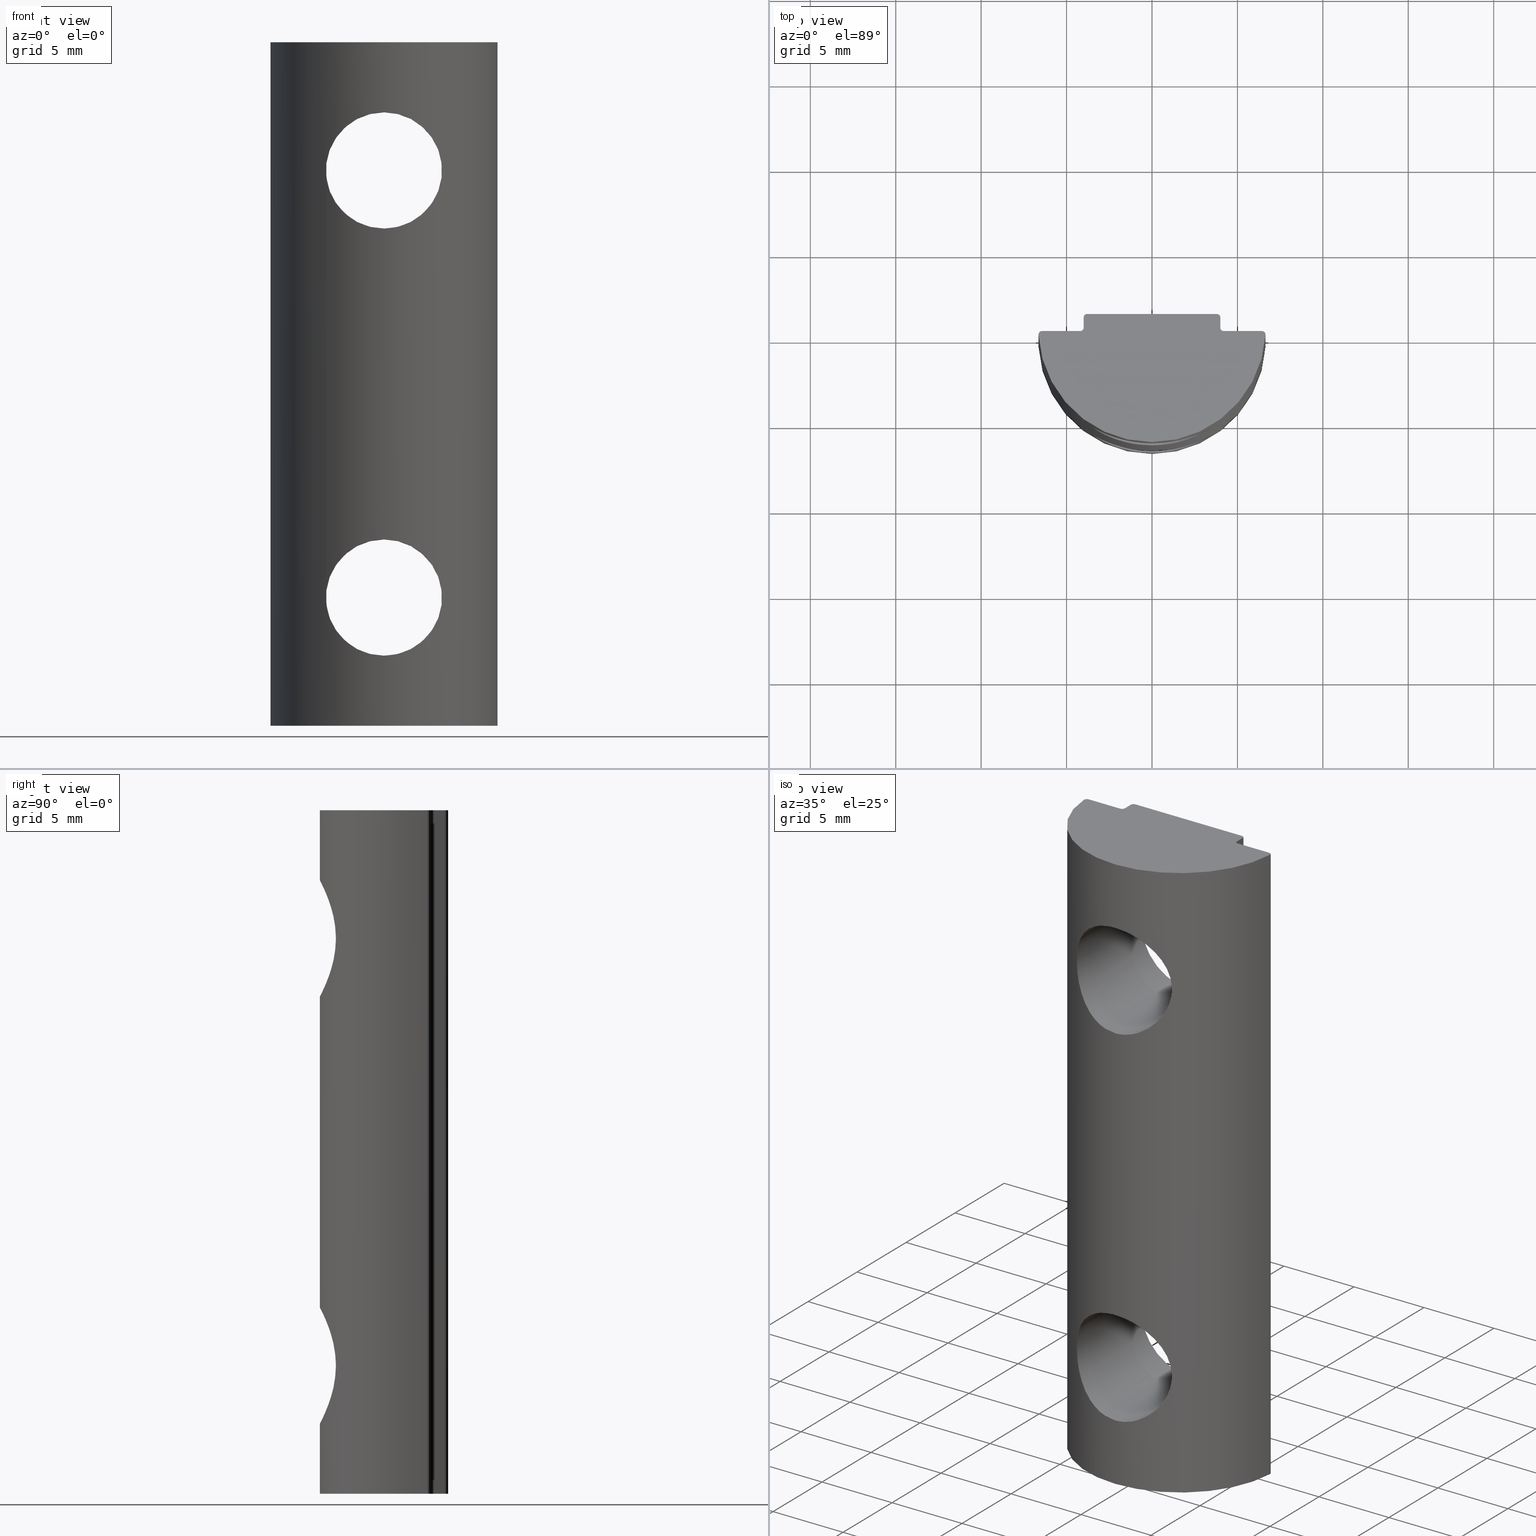
[diagram: canonical four-view strip — front | top / right | iso, engineering-drawing reading convention]
A machine part, canonical four-view strip (front | top / right | iso — engineering-drawing reading convention). The complete STEP part file that produces these views, byte-faithful:
ISO-10303-21;
HEADER;
/* Generated by software containing ST-Developer
 * from STEP Tools, Inc. (www.steptools.com) 
 */

FILE_DESCRIPTION(
/* description */ ('STEP AP203'),
/* implementation_level */ '2;1');

FILE_NAME(
/* name */ 
'Q:\\Catalogo\\2_Accessori Dierre\\Per Download Web e catalogo cartace
o\\CATALOGO ELEMENTI ASSEMBLAGGIO\\PAGINA 23\\CGIPR0000106.stp',
/* time_stamp */ '2018-05-04T11:14:13+02:00',
/* author */ ('fzagni'),
/* organization */ (''),
/* preprocessor_version */ 'ST-DEVELOPER v16.1',
/* originating_system */ 'Autodesk Inventor 2016',
/* authorisation */ '');

FILE_SCHEMA (('AUTOMOTIVE_DESIGN { 1 0 10303 214 3 1 1 }'));
ENDSEC;

DATA;
#10=MECHANICAL_DESIGN_GEOMETRIC_PRESENTATION_REPRESENTATION('',(#16),#580);
#11=DIMENSIONAL_EXPONENTS(0.,0.,0.,0.,0.,0.,0.);
#12=(
CONVERSION_BASED_UNIT('degree',#13)
NAMED_UNIT(#11)
PLANE_ANGLE_UNIT()
);
#13=PLANE_ANGLE_MEASURE_WITH_UNIT(PLANE_ANGLE_MEASURE(0.01745329252),#583);
#14=SHAPE_REPRESENTATION_RELATIONSHIP('SRR','None',#586,#15);
#15=ADVANCED_BREP_SHAPE_REPRESENTATION('',(#17),#579);
#16=STYLED_ITEM('',(#595),#17);
#17=MANIFOLD_SOLID_BREP('Solido1',#304);
#18=PLANE('',#316);
#19=PLANE('',#317);
#20=PLANE('',#318);
#21=PLANE('',#319);
#22=PLANE('',#320);
#23=PLANE('',#321);
#24=PLANE('',#327);
#25=LINE('',#508,#47);
#26=LINE('',#511,#48);
#27=LINE('',#517,#49);
#28=LINE('',#521,#50);
#29=LINE('',#523,#51);
#30=LINE('',#525,#52);
#31=LINE('',#526,#53);
#32=LINE('',#530,#54);
#33=LINE('',#532,#55);
#34=LINE('',#534,#56);
#35=LINE('',#535,#57);
#36=LINE('',#539,#58);
#37=LINE('',#541,#59);
#38=LINE('',#543,#60);
#39=LINE('',#544,#61);
#40=LINE('',#548,#62);
#41=LINE('',#550,#63);
#42=LINE('',#552,#64);
#43=LINE('',#553,#65);
#44=LINE('',#556,#66);
#45=LINE('',#558,#67);
#46=LINE('',#559,#68);
#47=VECTOR('',#352,40.);
#48=VECTOR('',#355,40.);
#49=VECTOR('',#362,40.);
#50=VECTOR('',#365,2.24213593341645);
#51=VECTOR('',#366,40.);
#52=VECTOR('',#367,2.24213593341645);
#53=VECTOR('',#368,40.);
#54=VECTOR('',#371,0.6);
#55=VECTOR('',#372,40.);
#56=VECTOR('',#373,0.6);
#57=VECTOR('',#374,40.);
#58=VECTOR('',#377,7.6);
#59=VECTOR('',#378,40.);
#60=VECTOR('',#379,7.6);
#61=VECTOR('',#380,40.);
#62=VECTOR('',#383,0.6);
#63=VECTOR('',#384,40.);
#64=VECTOR('',#385,0.6);
#65=VECTOR('',#386,40.);
#66=VECTOR('',#389,2.24213593341645);
#67=VECTOR('',#390,40.);
#68=VECTOR('',#391,2.24213593341645);
#69=FACE_BOUND('',#108,.T.);
#70=FACE_BOUND('',#110,.T.);
#71=FACE_BOUND('',#113,.T.);
#72=FACE_BOUND('',#114,.T.);
#73=FACE_BOUND('',#118,.T.);
#74=FACE_BOUND('',#119,.T.);
#75=CIRCLE('',#307,3.4);
#76=CIRCLE('',#309,3.4);
#77=CIRCLE('',#311,0.2);
#78=CIRCLE('',#312,0.2);
#79=CIRCLE('',#314,6.65173076923077);
#80=CIRCLE('',#315,6.65173076923077);
#81=CIRCLE('',#322,0.2);
#82=CIRCLE('',#323,0.2);
#83=CIRCLE('',#324,0.2);
#84=CIRCLE('',#325,0.2);
#85=CIRCLE('',#326,0.2);
#86=CIRCLE('',#328,0.2);
#87=CIRCLE('',#329,0.2);
#88=CIRCLE('',#330,0.2);
#89=CIRCLE('',#331,0.2);
#90=CIRCLE('',#332,0.2);
#91=FACE_OUTER_BOUND('',#107,.T.);
#92=FACE_OUTER_BOUND('',#109,.T.);
#93=FACE_OUTER_BOUND('',#111,.T.);
#94=FACE_OUTER_BOUND('',#112,.T.);
#95=FACE_OUTER_BOUND('',#115,.T.);
#96=FACE_OUTER_BOUND('',#116,.T.);
#97=FACE_OUTER_BOUND('',#117,.T.);
#98=FACE_OUTER_BOUND('',#120,.T.);
#99=FACE_OUTER_BOUND('',#121,.T.);
#100=FACE_OUTER_BOUND('',#122,.T.);
#101=FACE_OUTER_BOUND('',#123,.T.);
#102=FACE_OUTER_BOUND('',#124,.T.);
#103=FACE_OUTER_BOUND('',#125,.T.);
#104=FACE_OUTER_BOUND('',#126,.T.);
#105=FACE_OUTER_BOUND('',#127,.T.);
#106=FACE_OUTER_BOUND('',#128,.T.);
#107=EDGE_LOOP('',(#199));
#108=EDGE_LOOP('',(#200));
#109=EDGE_LOOP('',(#201));
#110=EDGE_LOOP('',(#202));
#111=EDGE_LOOP('',(#203,#204,#205,#206));
#112=EDGE_LOOP('',(#207,#208,#209,#210));
#113=EDGE_LOOP('',(#211));
#114=EDGE_LOOP('',(#212));
#115=EDGE_LOOP('',(#213,#214,#215,#216));
#116=EDGE_LOOP('',(#217,#218,#219,#220));
#117=EDGE_LOOP('',(#221,#222,#223,#224));
#118=EDGE_LOOP('',(#225));
#119=EDGE_LOOP('',(#226));
#120=EDGE_LOOP('',(#227,#228,#229,#230));
#121=EDGE_LOOP('',(#231,#232,#233,#234));
#122=EDGE_LOOP('',(#235,#236,#237,#238,#239,#240,#241,#242,#243,#244,#245,
#246));
#123=EDGE_LOOP('',(#247,#248,#249,#250,#251,#252,#253,#254,#255,#256,#257,
#258));
#124=EDGE_LOOP('',(#259,#260,#261,#262));
#125=EDGE_LOOP('',(#263,#264,#265,#266));
#126=EDGE_LOOP('',(#267,#268,#269,#270));
#127=EDGE_LOOP('',(#271,#272,#273,#274));
#128=EDGE_LOOP('',(#275,#276,#277,#278));
#129=B_SPLINE_CURVE_WITH_KNOTS('',3,(#429,#430,#431,#432,#433,#434,#435,
#436,#437,#438,#439,#440,#441,#442,#443,#444,#445,#446,#447,#448,#449,#450,
#451,#452,#453,#454,#455,#456,#457,#458,#459,#460,#461,#462),
 .UNSPECIFIED.,.T.,.F.,(4,2,2,2,2,2,2,2,2,2,2,2,2,2,2,2,4),(0.,0.131027554840982,
0.262055109681964,0.392687474751269,0.523319839820575,0.65395220488988,
0.784584569959185,0.915612124800167,1.04663967964115,1.17766723448213,1.30869478932311,
1.43932715439242,1.56995951946172,1.70059188453103,1.83122424960033,1.96225180444132,
2.0932793592823),.UNSPECIFIED.);
#130=B_SPLINE_CURVE_WITH_KNOTS('',3,(#467,#468,#469,#470,#471,#472,#473,
#474,#475,#476,#477,#478,#479,#480,#481,#482,#483,#484,#485,#486,#487,#488,
#489,#490,#491,#492,#493,#494,#495,#496,#497,#498,#499,#500),
 .UNSPECIFIED.,.T.,.F.,(4,2,2,2,2,2,2,2,2,2,2,2,2,2,2,2,4),(0.,0.131027554840982,
0.262055109681963,0.392687474751269,0.523319839820574,0.653952204889879,
0.784584569959185,0.915612124800167,1.04663967964115,1.17766723448213,1.30869478932311,
1.43932715439242,1.56995951946172,1.70059188453103,1.83122424960033,1.96225180444131,
2.0932793592823),.UNSPECIFIED.);
#131=VERTEX_POINT('',#428);
#132=VERTEX_POINT('',#463);
#133=VERTEX_POINT('',#466);
#134=VERTEX_POINT('',#501);
#135=VERTEX_POINT('',#504);
#136=VERTEX_POINT('',#505);
#137=VERTEX_POINT('',#507);
#138=VERTEX_POINT('',#509);
#139=VERTEX_POINT('',#513);
#140=VERTEX_POINT('',#515);
#141=VERTEX_POINT('',#519);
#142=VERTEX_POINT('',#520);
#143=VERTEX_POINT('',#522);
#144=VERTEX_POINT('',#524);
#145=VERTEX_POINT('',#528);
#146=VERTEX_POINT('',#529);
#147=VERTEX_POINT('',#531);
#148=VERTEX_POINT('',#533);
#149=VERTEX_POINT('',#537);
#150=VERTEX_POINT('',#538);
#151=VERTEX_POINT('',#540);
#152=VERTEX_POINT('',#542);
#153=VERTEX_POINT('',#546);
#154=VERTEX_POINT('',#547);
#155=VERTEX_POINT('',#549);
#156=VERTEX_POINT('',#551);
#157=VERTEX_POINT('',#555);
#158=VERTEX_POINT('',#557);
#159=EDGE_CURVE('',#131,#131,#129,.T.);
#160=EDGE_CURVE('',#132,#132,#75,.T.);
#161=EDGE_CURVE('',#133,#133,#130,.T.);
#162=EDGE_CURVE('',#134,#134,#76,.T.);
#163=EDGE_CURVE('',#135,#136,#77,.T.);
#164=EDGE_CURVE('',#137,#135,#25,.T.);
#165=EDGE_CURVE('',#138,#137,#78,.T.);
#166=EDGE_CURVE('',#136,#138,#26,.T.);
#167=EDGE_CURVE('',#136,#139,#79,.T.);
#168=EDGE_CURVE('',#138,#140,#80,.T.);
#169=EDGE_CURVE('',#140,#139,#27,.T.);
#170=EDGE_CURVE('',#141,#142,#28,.T.);
#171=EDGE_CURVE('',#142,#143,#29,.T.);
#172=EDGE_CURVE('',#144,#143,#30,.T.);
#173=EDGE_CURVE('',#144,#141,#31,.T.);
#174=EDGE_CURVE('',#145,#146,#32,.T.);
#175=EDGE_CURVE('',#146,#147,#33,.T.);
#176=EDGE_CURVE('',#148,#147,#34,.T.);
#177=EDGE_CURVE('',#148,#145,#35,.T.);
#178=EDGE_CURVE('',#149,#150,#36,.T.);
#179=EDGE_CURVE('',#150,#151,#37,.T.);
#180=EDGE_CURVE('',#152,#151,#38,.T.);
#181=EDGE_CURVE('',#152,#149,#39,.T.);
#182=EDGE_CURVE('',#153,#154,#40,.T.);
#183=EDGE_CURVE('',#154,#155,#41,.T.);
#184=EDGE_CURVE('',#156,#155,#42,.T.);
#185=EDGE_CURVE('',#156,#153,#43,.T.);
#186=EDGE_CURVE('',#157,#135,#44,.T.);
#187=EDGE_CURVE('',#157,#158,#45,.T.);
#188=EDGE_CURVE('',#158,#137,#46,.T.);
#189=EDGE_CURVE('',#151,#156,#81,.T.);
#190=EDGE_CURVE('',#155,#157,#82,.T.);
#191=EDGE_CURVE('',#139,#144,#83,.T.);
#192=EDGE_CURVE('',#143,#148,#84,.T.);
#193=EDGE_CURVE('',#147,#152,#85,.T.);
#194=EDGE_CURVE('',#153,#150,#86,.T.);
#195=EDGE_CURVE('',#149,#146,#87,.T.);
#196=EDGE_CURVE('',#145,#142,#88,.T.);
#197=EDGE_CURVE('',#141,#140,#89,.T.);
#198=EDGE_CURVE('',#158,#154,#90,.T.);
#199=ORIENTED_EDGE('',*,*,#159,.F.);
#200=ORIENTED_EDGE('',*,*,#160,.T.);
#201=ORIENTED_EDGE('',*,*,#161,.F.);
#202=ORIENTED_EDGE('',*,*,#162,.T.);
#203=ORIENTED_EDGE('',*,*,#163,.F.);
#204=ORIENTED_EDGE('',*,*,#164,.F.);
#205=ORIENTED_EDGE('',*,*,#165,.F.);
#206=ORIENTED_EDGE('',*,*,#166,.F.);
#207=ORIENTED_EDGE('',*,*,#167,.F.);
#208=ORIENTED_EDGE('',*,*,#166,.T.);
#209=ORIENTED_EDGE('',*,*,#168,.T.);
#210=ORIENTED_EDGE('',*,*,#169,.T.);
#211=ORIENTED_EDGE('',*,*,#159,.T.);
#212=ORIENTED_EDGE('',*,*,#161,.T.);
#213=ORIENTED_EDGE('',*,*,#170,.T.);
#214=ORIENTED_EDGE('',*,*,#171,.T.);
#215=ORIENTED_EDGE('',*,*,#172,.F.);
#216=ORIENTED_EDGE('',*,*,#173,.T.);
#217=ORIENTED_EDGE('',*,*,#174,.T.);
#218=ORIENTED_EDGE('',*,*,#175,.T.);
#219=ORIENTED_EDGE('',*,*,#176,.F.);
#220=ORIENTED_EDGE('',*,*,#177,.T.);
#221=ORIENTED_EDGE('',*,*,#178,.T.);
#222=ORIENTED_EDGE('',*,*,#179,.T.);
#223=ORIENTED_EDGE('',*,*,#180,.F.);
#224=ORIENTED_EDGE('',*,*,#181,.T.);
#225=ORIENTED_EDGE('',*,*,#160,.F.);
#226=ORIENTED_EDGE('',*,*,#162,.F.);
#227=ORIENTED_EDGE('',*,*,#182,.T.);
#228=ORIENTED_EDGE('',*,*,#183,.T.);
#229=ORIENTED_EDGE('',*,*,#184,.F.);
#230=ORIENTED_EDGE('',*,*,#185,.T.);
#231=ORIENTED_EDGE('',*,*,#186,.F.);
#232=ORIENTED_EDGE('',*,*,#187,.T.);
#233=ORIENTED_EDGE('',*,*,#188,.T.);
#234=ORIENTED_EDGE('',*,*,#164,.T.);
#235=ORIENTED_EDGE('',*,*,#180,.T.);
#236=ORIENTED_EDGE('',*,*,#189,.T.);
#237=ORIENTED_EDGE('',*,*,#184,.T.);
#238=ORIENTED_EDGE('',*,*,#190,.T.);
#239=ORIENTED_EDGE('',*,*,#186,.T.);
#240=ORIENTED_EDGE('',*,*,#163,.T.);
#241=ORIENTED_EDGE('',*,*,#167,.T.);
#242=ORIENTED_EDGE('',*,*,#191,.T.);
#243=ORIENTED_EDGE('',*,*,#172,.T.);
#244=ORIENTED_EDGE('',*,*,#192,.T.);
#245=ORIENTED_EDGE('',*,*,#176,.T.);
#246=ORIENTED_EDGE('',*,*,#193,.T.);
#247=ORIENTED_EDGE('',*,*,#182,.F.);
#248=ORIENTED_EDGE('',*,*,#194,.T.);
#249=ORIENTED_EDGE('',*,*,#178,.F.);
#250=ORIENTED_EDGE('',*,*,#195,.T.);
#251=ORIENTED_EDGE('',*,*,#174,.F.);
#252=ORIENTED_EDGE('',*,*,#196,.T.);
#253=ORIENTED_EDGE('',*,*,#170,.F.);
#254=ORIENTED_EDGE('',*,*,#197,.T.);
#255=ORIENTED_EDGE('',*,*,#168,.F.);
#256=ORIENTED_EDGE('',*,*,#165,.T.);
#257=ORIENTED_EDGE('',*,*,#188,.F.);
#258=ORIENTED_EDGE('',*,*,#198,.T.);
#259=ORIENTED_EDGE('',*,*,#190,.F.);
#260=ORIENTED_EDGE('',*,*,#183,.F.);
#261=ORIENTED_EDGE('',*,*,#198,.F.);
#262=ORIENTED_EDGE('',*,*,#187,.F.);
#263=ORIENTED_EDGE('',*,*,#189,.F.);
#264=ORIENTED_EDGE('',*,*,#179,.F.);
#265=ORIENTED_EDGE('',*,*,#194,.F.);
#266=ORIENTED_EDGE('',*,*,#185,.F.);
#267=ORIENTED_EDGE('',*,*,#193,.F.);
#268=ORIENTED_EDGE('',*,*,#175,.F.);
#269=ORIENTED_EDGE('',*,*,#195,.F.);
#270=ORIENTED_EDGE('',*,*,#181,.F.);
#271=ORIENTED_EDGE('',*,*,#192,.F.);
#272=ORIENTED_EDGE('',*,*,#171,.F.);
#273=ORIENTED_EDGE('',*,*,#196,.F.);
#274=ORIENTED_EDGE('',*,*,#177,.F.);
#275=ORIENTED_EDGE('',*,*,#191,.F.);
#276=ORIENTED_EDGE('',*,*,#169,.F.);
#277=ORIENTED_EDGE('',*,*,#197,.F.);
#278=ORIENTED_EDGE('',*,*,#173,.F.);
#279=CYLINDRICAL_SURFACE('',#306,3.4);
#280=CYLINDRICAL_SURFACE('',#308,3.4);
#281=CYLINDRICAL_SURFACE('',#310,0.2);
#282=CYLINDRICAL_SURFACE('',#313,6.65173076923077);
#283=CYLINDRICAL_SURFACE('',#333,0.2);
#284=CYLINDRICAL_SURFACE('',#334,0.2);
#285=CYLINDRICAL_SURFACE('',#335,0.2);
#286=CYLINDRICAL_SURFACE('',#336,0.2);
#287=CYLINDRICAL_SURFACE('',#337,0.2);
#288=ADVANCED_FACE('',(#91,#69),#279,.F.);
#289=ADVANCED_FACE('',(#92,#70),#280,.F.);
#290=ADVANCED_FACE('',(#93),#281,.T.);
#291=ADVANCED_FACE('',(#94,#71,#72),#282,.T.);
#292=ADVANCED_FACE('',(#95),#18,.F.);
#293=ADVANCED_FACE('',(#96),#19,.F.);
#294=ADVANCED_FACE('',(#97,#73,#74),#20,.F.);
#295=ADVANCED_FACE('',(#98),#21,.F.);
#296=ADVANCED_FACE('',(#99),#22,.F.);
#297=ADVANCED_FACE('',(#100),#23,.T.);
#298=ADVANCED_FACE('',(#101),#24,.F.);
#299=ADVANCED_FACE('',(#102),#283,.F.);
#300=ADVANCED_FACE('',(#103),#284,.T.);
#301=ADVANCED_FACE('',(#104),#285,.T.);
#302=ADVANCED_FACE('',(#105),#286,.F.);
#303=ADVANCED_FACE('',(#106),#287,.T.);
#304=CLOSED_SHELL('',(#288,#289,#290,#291,#292,#293,#294,#295,#296,#297,
#298,#299,#300,#301,#302,#303));
#305=AXIS2_PLACEMENT_3D('placement',#426,#338,#339);
#306=AXIS2_PLACEMENT_3D('',#427,#340,#341);
#307=AXIS2_PLACEMENT_3D('',#464,#342,#343);
#308=AXIS2_PLACEMENT_3D('',#465,#344,#345);
#309=AXIS2_PLACEMENT_3D('',#502,#346,#347);
#310=AXIS2_PLACEMENT_3D('',#503,#348,#349);
#311=AXIS2_PLACEMENT_3D('',#506,#350,#351);
#312=AXIS2_PLACEMENT_3D('',#510,#353,#354);
#313=AXIS2_PLACEMENT_3D('',#512,#356,#357);
#314=AXIS2_PLACEMENT_3D('',#514,#358,#359);
#315=AXIS2_PLACEMENT_3D('',#516,#360,#361);
#316=AXIS2_PLACEMENT_3D('',#518,#363,#364);
#317=AXIS2_PLACEMENT_3D('',#527,#369,#370);
#318=AXIS2_PLACEMENT_3D('',#536,#375,#376);
#319=AXIS2_PLACEMENT_3D('',#545,#381,#382);
#320=AXIS2_PLACEMENT_3D('',#554,#387,#388);
#321=AXIS2_PLACEMENT_3D('',#560,#392,#393);
#322=AXIS2_PLACEMENT_3D('',#561,#394,#395);
#323=AXIS2_PLACEMENT_3D('',#562,#396,#397);
#324=AXIS2_PLACEMENT_3D('',#563,#398,#399);
#325=AXIS2_PLACEMENT_3D('',#564,#400,#401);
#326=AXIS2_PLACEMENT_3D('',#565,#402,#403);
#327=AXIS2_PLACEMENT_3D('',#566,#404,#405);
#328=AXIS2_PLACEMENT_3D('',#567,#406,#407);
#329=AXIS2_PLACEMENT_3D('',#568,#408,#409);
#330=AXIS2_PLACEMENT_3D('',#569,#410,#411);
#331=AXIS2_PLACEMENT_3D('',#570,#412,#413);
#332=AXIS2_PLACEMENT_3D('',#571,#414,#415);
#333=AXIS2_PLACEMENT_3D('',#572,#416,#417);
#334=AXIS2_PLACEMENT_3D('',#573,#418,#419);
#335=AXIS2_PLACEMENT_3D('',#574,#420,#421);
#336=AXIS2_PLACEMENT_3D('',#575,#422,#423);
#337=AXIS2_PLACEMENT_3D('',#576,#424,#425);
#338=DIRECTION('axis',(0.,0.,1.));
#339=DIRECTION('refdir',(1.,0.,0.));
#340=DIRECTION('center_axis',(0.,1.,0.));
#341=DIRECTION('ref_axis',(0.,0.,1.));
#342=DIRECTION('center_axis',(0.,1.,0.));
#343=DIRECTION('ref_axis',(0.,0.,1.));
#344=DIRECTION('center_axis',(0.,1.,0.));
#345=DIRECTION('ref_axis',(0.,0.,1.));
#346=DIRECTION('center_axis',(0.,1.,0.));
#347=DIRECTION('ref_axis',(0.,0.,1.));
#348=DIRECTION('center_axis',(0.,0.,-1.));
#349=DIRECTION('ref_axis',(-1.,0.,0.));
#350=DIRECTION('center_axis',(0.,0.,1.));
#351=DIRECTION('ref_axis',(1.,0.,0.));
#352=DIRECTION('',(0.,0.,1.));
#353=DIRECTION('center_axis',(0.,0.,-1.));
#354=DIRECTION('ref_axis',(1.,2.49366499671666E-14,0.));
#355=DIRECTION('',(0.,0.,-1.));
#356=DIRECTION('center_axis',(0.,0.,-1.));
#357=DIRECTION('ref_axis',(-1.,0.,0.));
#358=DIRECTION('center_axis',(0.,0.,1.));
#359=DIRECTION('ref_axis',(1.,0.,0.));
#360=DIRECTION('center_axis',(0.,0.,1.));
#361=DIRECTION('ref_axis',(1.,0.,0.));
#362=DIRECTION('',(0.,0.,1.));
#363=DIRECTION('center_axis',(0.,-1.,0.));
#364=DIRECTION('ref_axis',(0.,0.,-1.));
#365=DIRECTION('',(-1.,0.,0.));
#366=DIRECTION('',(0.,0.,1.));
#367=DIRECTION('',(-1.,0.,0.));
#368=DIRECTION('',(0.,0.,-1.));
#369=DIRECTION('center_axis',(-1.,0.,0.));
#370=DIRECTION('ref_axis',(0.,0.,1.));
#371=DIRECTION('',(0.,1.,0.));
#372=DIRECTION('',(0.,0.,1.));
#373=DIRECTION('',(0.,1.,0.));
#374=DIRECTION('',(0.,0.,-1.));
#375=DIRECTION('center_axis',(0.,-1.,0.));
#376=DIRECTION('ref_axis',(0.,0.,-1.));
#377=DIRECTION('',(-1.,0.,0.));
#378=DIRECTION('',(0.,0.,1.));
#379=DIRECTION('',(-1.,0.,0.));
#380=DIRECTION('',(0.,0.,-1.));
#381=DIRECTION('center_axis',(1.,0.,0.));
#382=DIRECTION('ref_axis',(0.,0.,-1.));
#383=DIRECTION('',(0.,-1.,0.));
#384=DIRECTION('',(0.,0.,1.));
#385=DIRECTION('',(0.,-1.,0.));
#386=DIRECTION('',(0.,0.,-1.));
#387=DIRECTION('center_axis',(0.,-1.,0.));
#388=DIRECTION('ref_axis',(0.,0.,-1.));
#389=DIRECTION('',(-1.,0.,0.));
#390=DIRECTION('',(0.,0.,-1.));
#391=DIRECTION('',(-1.,0.,0.));
#392=DIRECTION('center_axis',(0.,0.,1.));
#393=DIRECTION('ref_axis',(1.,0.,0.));
#394=DIRECTION('center_axis',(0.,0.,1.));
#395=DIRECTION('ref_axis',(1.,0.,0.));
#396=DIRECTION('center_axis',(0.,0.,-1.));
#397=DIRECTION('ref_axis',(1.,0.,0.));
#398=DIRECTION('center_axis',(0.,0.,1.));
#399=DIRECTION('ref_axis',(1.,0.,0.));
#400=DIRECTION('center_axis',(0.,0.,-1.));
#401=DIRECTION('ref_axis',(1.,0.,0.));
#402=DIRECTION('center_axis',(0.,0.,1.));
#403=DIRECTION('ref_axis',(1.,0.,0.));
#404=DIRECTION('center_axis',(0.,0.,1.));
#405=DIRECTION('ref_axis',(1.,0.,0.));
#406=DIRECTION('center_axis',(0.,0.,-1.));
#407=DIRECTION('ref_axis',(1.,0.,0.));
#408=DIRECTION('center_axis',(0.,0.,-1.));
#409=DIRECTION('ref_axis',(1.,0.,0.));
#410=DIRECTION('center_axis',(0.,0.,1.));
#411=DIRECTION('ref_axis',(1.,0.,0.));
#412=DIRECTION('center_axis',(0.,0.,-1.));
#413=DIRECTION('ref_axis',(1.,0.,0.));
#414=DIRECTION('center_axis',(0.,0.,1.));
#415=DIRECTION('ref_axis',(1.,0.,0.));
#416=DIRECTION('center_axis',(0.,0.,1.));
#417=DIRECTION('ref_axis',(1.,0.,0.));
#418=DIRECTION('center_axis',(0.,0.,-1.));
#419=DIRECTION('ref_axis',(-1.,0.,0.));
#420=DIRECTION('center_axis',(0.,0.,-1.));
#421=DIRECTION('ref_axis',(-1.,0.,0.));
#422=DIRECTION('center_axis',(0.,0.,1.));
#423=DIRECTION('ref_axis',(1.,0.,0.));
#424=DIRECTION('center_axis',(0.,0.,-1.));
#425=DIRECTION('ref_axis',(-1.,0.,0.));
#426=CARTESIAN_POINT('',(0.,0.,0.));
#427=CARTESIAN_POINT('Origin',(0.,1.,32.5));
#428=CARTESIAN_POINT('',(4.16379924307195E-16,-6.5,29.1));
#429=CARTESIAN_POINT('Ctrl Pts',(3.4,-5.56539457715891,32.5));
#430=CARTESIAN_POINT('Ctrl Pts',(3.4,-5.56539457715891,32.0632414838634));
#431=CARTESIAN_POINT('Ctrl Pts',(3.31102816126517,-5.62077284062291,31.6046937341527));
#432=CARTESIAN_POINT('Ctrl Pts',(2.96191687936118,-5.8074427995085,30.7703947402309));
#433=CARTESIAN_POINT('Ctrl Pts',(2.70201157560893,-5.93486926136199,30.3936854635404));
#434=CARTESIAN_POINT('Ctrl Pts',(2.10721287184094,-6.16543677489532,29.7988867597724));
#435=CARTESIAN_POINT('Ctrl Pts',(1.73020592601123,-6.28515870979323,29.5383254414694));
#436=CARTESIAN_POINT('Ctrl Pts',(0.894584413487754,-6.4533337686477,29.1886788089965));
#437=CARTESIAN_POINT('Ctrl Pts',(0.435441216897685,-6.5,29.1));
#438=CARTESIAN_POINT('Ctrl Pts',(-0.435441216897684,-6.5,29.1));
#439=CARTESIAN_POINT('Ctrl Pts',(-0.894584413487754,-6.4533337686477,29.1886788089965));
#440=CARTESIAN_POINT('Ctrl Pts',(-1.73020592601123,-6.28515870979323,29.5383254414694));
#441=CARTESIAN_POINT('Ctrl Pts',(-2.10721287184094,-6.16543677489532,29.7988867597724));
#442=CARTESIAN_POINT('Ctrl Pts',(-2.70201157560893,-5.93486926136199,30.3936854635404));
#443=CARTESIAN_POINT('Ctrl Pts',(-2.96191687936118,-5.8074427995085,30.7703947402309));
#444=CARTESIAN_POINT('Ctrl Pts',(-3.31102816126517,-5.62077284062291,31.6046937341527));
#445=CARTESIAN_POINT('Ctrl Pts',(-3.4,-5.56539457715891,32.0632414838634));
#446=CARTESIAN_POINT('Ctrl Pts',(-3.4,-5.56539457715891,32.9367585161366));
#447=CARTESIAN_POINT('Ctrl Pts',(-3.31102816126517,-5.62077284062291,33.3953062658473));
#448=CARTESIAN_POINT('Ctrl Pts',(-2.96191687936118,-5.8074427995085,34.2296052597691));
#449=CARTESIAN_POINT('Ctrl Pts',(-2.70201157560893,-5.93486926136199,34.6063145364596));
#450=CARTESIAN_POINT('Ctrl Pts',(-2.10721287184095,-6.16543677489532,35.2011132402276));
#451=CARTESIAN_POINT('Ctrl Pts',(-1.73020592601124,-6.28515870979322,35.4616745585306));
#452=CARTESIAN_POINT('Ctrl Pts',(-0.894584413487756,-6.4533337686477,35.8113211910035));
#453=CARTESIAN_POINT('Ctrl Pts',(-0.435441216897686,-6.5,35.9));
#454=CARTESIAN_POINT('Ctrl Pts',(0.435441216897683,-6.5,35.9));
#455=CARTESIAN_POINT('Ctrl Pts',(0.894584413487753,-6.4533337686477,35.8113211910035));
#456=CARTESIAN_POINT('Ctrl Pts',(1.73020592601123,-6.28515870979323,35.4616745585306));
#457=CARTESIAN_POINT('Ctrl Pts',(2.10721287184094,-6.16543677489532,35.2011132402276));
#458=CARTESIAN_POINT('Ctrl Pts',(2.70201157560893,-5.93486926136199,34.6063145364596));
#459=CARTESIAN_POINT('Ctrl Pts',(2.96191687936118,-5.8074427995085,34.2296052597691));
#460=CARTESIAN_POINT('Ctrl Pts',(3.31102816126517,-5.62077284062291,33.3953062658473));
#461=CARTESIAN_POINT('Ctrl Pts',(3.4,-5.56539457715891,32.9367585161366));
#462=CARTESIAN_POINT('Ctrl Pts',(3.4,-5.56539457715891,32.5));
#463=CARTESIAN_POINT('',(0.,1.,35.9));
#464=CARTESIAN_POINT('Origin',(0.,1.,32.5));
#465=CARTESIAN_POINT('Origin',(0.,1.,7.5));
#466=CARTESIAN_POINT('',(4.16379924307195E-16,-6.5,4.1));
#467=CARTESIAN_POINT('Ctrl Pts',(3.4,-5.56539457715891,7.5));
#468=CARTESIAN_POINT('Ctrl Pts',(3.4,-5.56539457715891,7.06324148386339));
#469=CARTESIAN_POINT('Ctrl Pts',(3.31102816126517,-5.62077284062291,6.60469373415269));
#470=CARTESIAN_POINT('Ctrl Pts',(2.96191687936118,-5.8074427995085,5.7703947402309));
#471=CARTESIAN_POINT('Ctrl Pts',(2.70201157560892,-5.93486926136199,5.39368546354041));
#472=CARTESIAN_POINT('Ctrl Pts',(2.10721287184094,-6.16543677489532,4.79888675977242));
#473=CARTESIAN_POINT('Ctrl Pts',(1.73020592601123,-6.28515870979322,4.53832544146937));
#474=CARTESIAN_POINT('Ctrl Pts',(0.894584413487753,-6.4533337686477,4.18867880899651));
#475=CARTESIAN_POINT('Ctrl Pts',(0.435441216897685,-6.5,4.1));
#476=CARTESIAN_POINT('Ctrl Pts',(-0.435441216897684,-6.5,4.1));
#477=CARTESIAN_POINT('Ctrl Pts',(-0.894584413487753,-6.4533337686477,4.18867880899651));
#478=CARTESIAN_POINT('Ctrl Pts',(-1.73020592601123,-6.28515870979323,4.53832544146937));
#479=CARTESIAN_POINT('Ctrl Pts',(-2.10721287184094,-6.16543677489532,4.79888675977242));
#480=CARTESIAN_POINT('Ctrl Pts',(-2.70201157560892,-5.93486926136199,5.39368546354041));
#481=CARTESIAN_POINT('Ctrl Pts',(-2.96191687936118,-5.8074427995085,5.7703947402309));
#482=CARTESIAN_POINT('Ctrl Pts',(-3.31102816126517,-5.62077284062291,6.60469373415269));
#483=CARTESIAN_POINT('Ctrl Pts',(-3.4,-5.56539457715892,7.0632414838634));
#484=CARTESIAN_POINT('Ctrl Pts',(-3.4,-5.56539457715892,7.93675851613661));
#485=CARTESIAN_POINT('Ctrl Pts',(-3.31102816126517,-5.62077284062291,8.39530626584731));
#486=CARTESIAN_POINT('Ctrl Pts',(-2.96191687936118,-5.8074427995085,9.2296052597691));
#487=CARTESIAN_POINT('Ctrl Pts',(-2.70201157560893,-5.93486926136199,9.6063145364596));
#488=CARTESIAN_POINT('Ctrl Pts',(-2.10721287184094,-6.16543677489532,10.2011132402276));
#489=CARTESIAN_POINT('Ctrl Pts',(-1.73020592601123,-6.28515870979323,10.4616745585306));
#490=CARTESIAN_POINT('Ctrl Pts',(-0.894584413487753,-6.4533337686477,10.8113211910035));
#491=CARTESIAN_POINT('Ctrl Pts',(-0.435441216897685,-6.5,10.9));
#492=CARTESIAN_POINT('Ctrl Pts',(0.435441216897684,-6.5,10.9));
#493=CARTESIAN_POINT('Ctrl Pts',(0.89458441348775,-6.4533337686477,10.8113211910035));
#494=CARTESIAN_POINT('Ctrl Pts',(1.73020592601123,-6.28515870979323,10.4616745585306));
#495=CARTESIAN_POINT('Ctrl Pts',(2.10721287184094,-6.16543677489532,10.2011132402276));
#496=CARTESIAN_POINT('Ctrl Pts',(2.70201157560892,-5.93486926136199,9.6063145364596));
#497=CARTESIAN_POINT('Ctrl Pts',(2.96191687936118,-5.8074427995085,9.2296052597691));
#498=CARTESIAN_POINT('Ctrl Pts',(3.31102816126517,-5.62077284062291,8.39530626584731));
#499=CARTESIAN_POINT('Ctrl Pts',(3.4,-5.56539457715891,7.93675851613661));
#500=CARTESIAN_POINT('Ctrl Pts',(3.4,-5.56539457715891,7.5));
#501=CARTESIAN_POINT('',(0.,1.,10.9));
#502=CARTESIAN_POINT('Origin',(0.,1.,7.5));
#503=CARTESIAN_POINT('Origin',(-6.44213593341645,-0.2,40.));
#504=CARTESIAN_POINT('',(-6.44213593341645,0.,40.));
#505=CARTESIAN_POINT('',(-6.6418384989401,-0.210903454648425,40.));
#506=CARTESIAN_POINT('Origin',(-6.44213593341645,-0.2,40.));
#507=CARTESIAN_POINT('',(-6.44213593341645,0.,0.));
#508=CARTESIAN_POINT('',(-6.44213593341645,0.,40.));
#509=CARTESIAN_POINT('',(-6.6418384989401,-0.210903454648425,0.));
#510=CARTESIAN_POINT('Origin',(-6.44213593341645,-0.2,0.));
#511=CARTESIAN_POINT('',(-6.6418384989401,-0.210903454648425,40.));
#512=CARTESIAN_POINT('Origin',(0.,0.151730769230771,40.));
#513=CARTESIAN_POINT('',(6.6418384989401,-0.210903454648425,40.));
#514=CARTESIAN_POINT('Origin',(0.,0.151730769230771,40.));
#515=CARTESIAN_POINT('',(6.6418384989401,-0.210903454648425,0.));
#516=CARTESIAN_POINT('Origin',(0.,0.151730769230771,0.));
#517=CARTESIAN_POINT('',(6.6418384989401,-0.210903454648425,40.));
#518=CARTESIAN_POINT('Origin',(4.,0.,40.));
#519=CARTESIAN_POINT('',(6.44213593341645,0.,0.));
#520=CARTESIAN_POINT('',(4.2,0.,0.));
#521=CARTESIAN_POINT('',(4.,0.,0.));
#522=CARTESIAN_POINT('',(4.2,0.,40.));
#523=CARTESIAN_POINT('',(4.2,0.,40.));
#524=CARTESIAN_POINT('',(6.44213593341645,0.,40.));
#525=CARTESIAN_POINT('',(4.,0.,40.));
#526=CARTESIAN_POINT('',(6.44213593341645,0.,40.));
#527=CARTESIAN_POINT('Origin',(4.,1.,40.));
#528=CARTESIAN_POINT('',(4.,0.2,0.));
#529=CARTESIAN_POINT('',(4.,0.8,0.));
#530=CARTESIAN_POINT('',(4.,1.,0.));
#531=CARTESIAN_POINT('',(4.,0.8,40.));
#532=CARTESIAN_POINT('',(4.,0.8,40.));
#533=CARTESIAN_POINT('',(4.,0.2,40.));
#534=CARTESIAN_POINT('',(4.,1.,40.));
#535=CARTESIAN_POINT('',(4.,0.2,0.));
#536=CARTESIAN_POINT('Origin',(-4.,1.,40.));
#537=CARTESIAN_POINT('',(3.8,1.,0.));
#538=CARTESIAN_POINT('',(-3.8,1.,0.));
#539=CARTESIAN_POINT('',(-4.,1.,0.));
#540=CARTESIAN_POINT('',(-3.8,1.,40.));
#541=CARTESIAN_POINT('',(-3.8,1.,40.));
#542=CARTESIAN_POINT('',(3.8,1.,40.));
#543=CARTESIAN_POINT('',(-4.,1.,40.));
#544=CARTESIAN_POINT('',(3.8,1.,40.));
#545=CARTESIAN_POINT('Origin',(-4.,0.,40.));
#546=CARTESIAN_POINT('',(-4.,0.8,0.));
#547=CARTESIAN_POINT('',(-4.,0.2,0.));
#548=CARTESIAN_POINT('',(-4.,0.,0.));
#549=CARTESIAN_POINT('',(-4.,0.2,40.));
#550=CARTESIAN_POINT('',(-4.,0.2,40.));
#551=CARTESIAN_POINT('',(-4.,0.8,40.));
#552=CARTESIAN_POINT('',(-4.,0.,40.));
#553=CARTESIAN_POINT('',(-4.,0.8,40.));
#554=CARTESIAN_POINT('Origin',(-6.65,0.,40.));
#555=CARTESIAN_POINT('',(-4.2,0.,40.));
#556=CARTESIAN_POINT('',(-6.65,0.,40.));
#557=CARTESIAN_POINT('',(-4.2,0.,0.));
#558=CARTESIAN_POINT('',(-4.2,0.,0.));
#559=CARTESIAN_POINT('',(-6.65,0.,0.));
#560=CARTESIAN_POINT('Origin',(0.,0.151730769230771,40.));
#561=CARTESIAN_POINT('Origin',(-3.8,0.8,40.));
#562=CARTESIAN_POINT('Origin',(-4.2,0.2,40.));
#563=CARTESIAN_POINT('Origin',(6.44213593341645,-0.2,40.));
#564=CARTESIAN_POINT('Origin',(4.2,0.2,40.));
#565=CARTESIAN_POINT('Origin',(3.8,0.8,40.));
#566=CARTESIAN_POINT('Origin',(0.,0.151730769230771,0.));
#567=CARTESIAN_POINT('Origin',(-3.8,0.8,0.));
#568=CARTESIAN_POINT('Origin',(3.8,0.8,0.));
#569=CARTESIAN_POINT('Origin',(4.2,0.2,0.));
#570=CARTESIAN_POINT('Origin',(6.44213593341645,-0.2,0.));
#571=CARTESIAN_POINT('Origin',(-4.2,0.2,0.));
#572=CARTESIAN_POINT('Origin',(-4.2,0.2,40.));
#573=CARTESIAN_POINT('Origin',(-3.8,0.8,40.));
#574=CARTESIAN_POINT('Origin',(3.8,0.8,40.));
#575=CARTESIAN_POINT('Origin',(4.2,0.2,40.));
#576=CARTESIAN_POINT('Origin',(6.44213593341645,-0.2,40.));
#577=UNCERTAINTY_MEASURE_WITH_UNIT(LENGTH_MEASURE(0.01),#581,
'DISTANCE_ACCURACY_VALUE',
'Maximum model space distance between geometric entities at asserted c
onnectivities');
#578=UNCERTAINTY_MEASURE_WITH_UNIT(LENGTH_MEASURE(1.E-6),#581,
'DISTANCE_ACCURACY_VALUE',
'Maximum model space distance between geometric entities at asserted c
onnectivities');
#579=(
GEOMETRIC_REPRESENTATION_CONTEXT(3)
GLOBAL_UNCERTAINTY_ASSIGNED_CONTEXT((#577))
GLOBAL_UNIT_ASSIGNED_CONTEXT((#581,#583,#582))
REPRESENTATION_CONTEXT('','3D')
);
#580=(
GEOMETRIC_REPRESENTATION_CONTEXT(3)
GLOBAL_UNCERTAINTY_ASSIGNED_CONTEXT((#578))
GLOBAL_UNIT_ASSIGNED_CONTEXT((#581,#12,#582))
REPRESENTATION_CONTEXT('','3D')
);
#581=(
LENGTH_UNIT()
NAMED_UNIT(*)
SI_UNIT(.MILLI.,.METRE.)
);
#582=(
NAMED_UNIT(*)
SI_UNIT($,.STERADIAN.)
SOLID_ANGLE_UNIT()
);
#583=(
NAMED_UNIT(*)
PLANE_ANGLE_UNIT()
SI_UNIT($,.RADIAN.)
);
#584=SHAPE_DEFINITION_REPRESENTATION(#585,#586);
#585=PRODUCT_DEFINITION_SHAPE('',$,#588);
#586=SHAPE_REPRESENTATION('',(#305),#579);
#587=PRODUCT_DEFINITION_CONTEXT('part definition',#592,'design');
#588=PRODUCT_DEFINITION('CGIPR0000106','CGIPR0000106',#589,#587);
#589=PRODUCT_DEFINITION_FORMATION('','TUTTO',#594);
#590=PRODUCT_RELATED_PRODUCT_CATEGORY('CGIPR0000106','CGIPR0000106',(#594));
#591=APPLICATION_PROTOCOL_DEFINITION('international standard',
'automotive_design',2009,#592);
#592=APPLICATION_CONTEXT(
'Core Data for Automotive Mechanical Design Process');
#593=PRODUCT_CONTEXT('part definition',#592,'mechanical');
#594=PRODUCT('CGIPR0000106','CGIPR0000106',$,(#593));
#595=PRESENTATION_STYLE_ASSIGNMENT((#596));
#596=SURFACE_STYLE_USAGE(.BOTH.,#597);
#597=SURFACE_SIDE_STYLE('',(#598));
#598=SURFACE_STYLE_FILL_AREA(#599);
#599=FILL_AREA_STYLE('',(#600));
#600=FILL_AREA_STYLE_COLOUR('',#601);
#601=COLOUR_RGB('',0.83921568627451,0.886274509803922,0.854901960784314);
ENDSEC;
END-ISO-10303-21;
